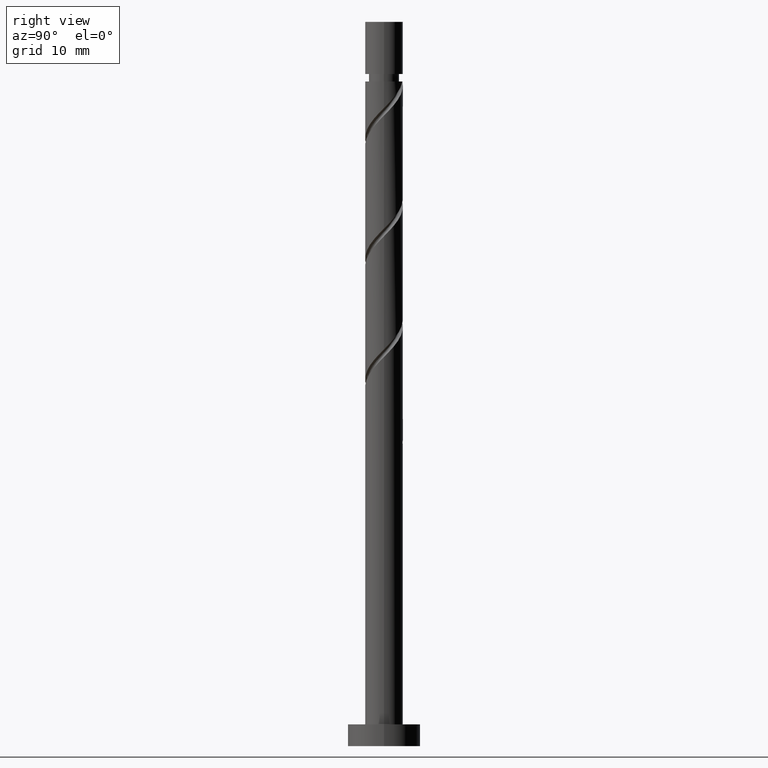
[diagram: clean part render]
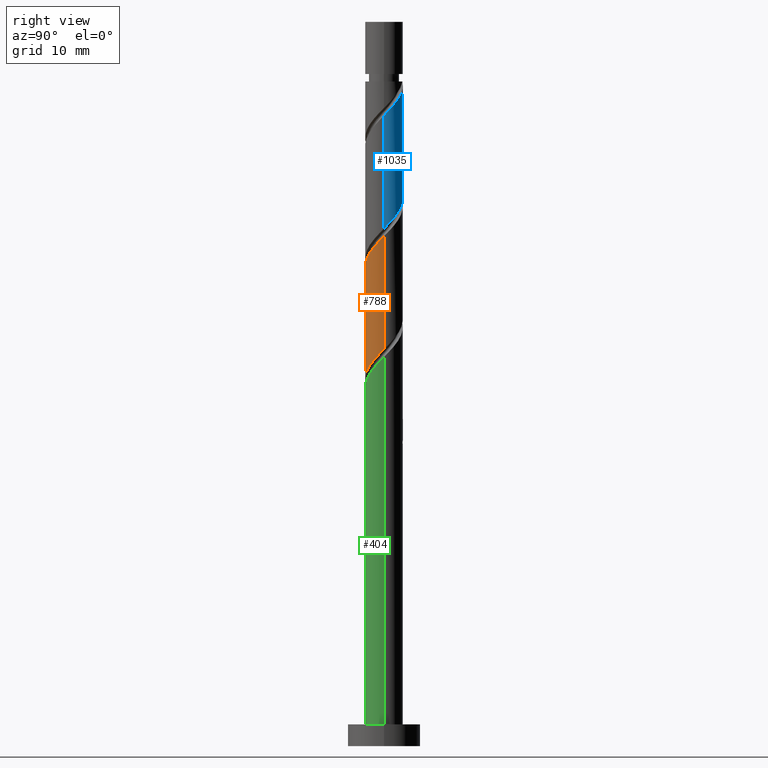
[diagram: same view with three faces highlighted in distinct colors, each labeled with its STEP entity id]
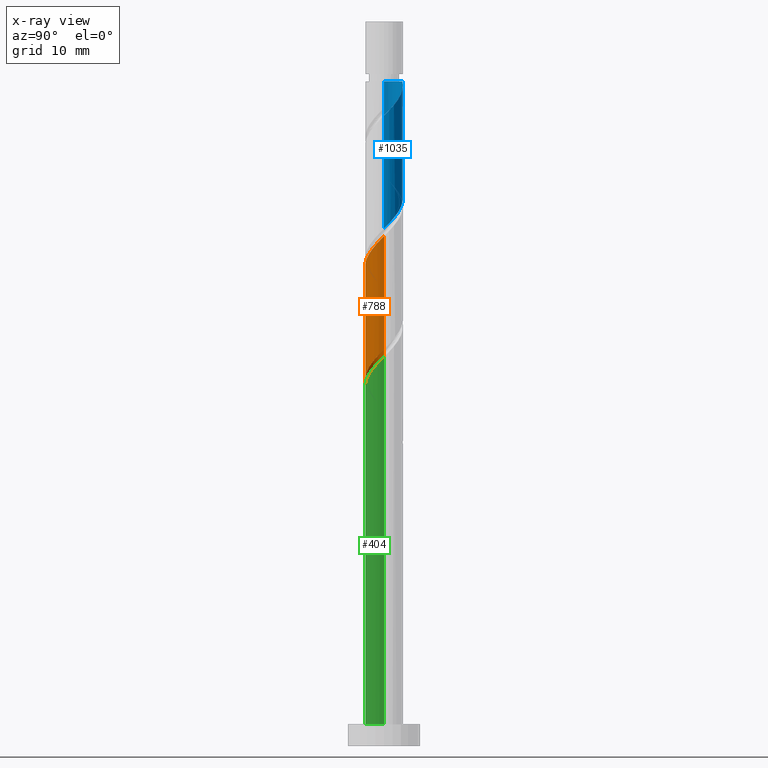
[diagram: x-ray of the same camera — body ghosted, the three highlighted faces saturated]
A machine part, right view with three faces highlighted in distinct colors.
The next image is the same camera in x-ray (body ghosted, the three faces saturated) — at least one of them is partly hidden behind the body in this view.
Their STEP definitions:

[orange] entity #788 — the highlighted cylindrical surface (edge-blend (fillet) strip) has radius 2.6 mm, axis along (-0, -0, -1).
#37 = CARTESIAN_POINT ( 'NONE',  ( -1.947935995195031467, -1.722075886429966562, 63.98565855078766873 ) ) ;
#65 = CARTESIAN_POINT ( 'NONE',  ( 2.587307007084878929, -0.5253750955076286200, 54.26343632856544730 ) ) ;
#70 = EDGE_CURVE ( 'NONE', #134, #500, #477, .T. ) ;
#72 = CARTESIAN_POINT ( 'NONE',  ( 2.419445721942477423, -0.9519886546457575482, 53.80047336560247828 ) ) ;
#134 = VERTEX_POINT ( 'NONE', #978 ) ;
#145 = CARTESIAN_POINT ( 'NONE',  ( -2.251584436800081690, -1.378602213783888919, 63.52269558782469261 ) ) ;
#176 = CARTESIAN_POINT ( 'NONE',  ( -2.600000000000002753, -0.03354435326324917144, 62.09993214750903689 ) ) ;
#178 = EDGE_CURVE ( 'NONE', #1363, #134, #1203, .T. ) ;
#196 = CARTESIAN_POINT ( 'NONE',  ( 0.06811232045027157400, -2.639230427926491984, 66.30047336560247118 ) ) ;
#197 = CARTESIAN_POINT ( 'NONE',  ( -1.748641682767721139, -1.977986047771176148, 48.70788077300989016 ) ) ;
#232 = ORIENTED_EDGE ( 'NONE', *, *, #1482, .T. ) ;
#289 = CARTESIAN_POINT ( 'NONE',  ( 1.748641682767722250, -1.977986047771178590, 68.15232521745434724 ) ) ;
#290 = CARTESIAN_POINT ( 'NONE',  ( 0.8386653243171569017, -2.503361143278804768, 51.48565855078766162 ) ) ;
#315 = CARTESIAN_POINT ( 'NONE',  ( 2.600000000000001865, -2.771178294448784339E-15, 70.39924810691003643 ) ) ;
#339 = FACE_OUTER_BOUND ( 'NONE', #1066, .T. ) ;
#352 = DIRECTION ( 'NONE',  ( -1.000000000000000000, 0.000000000000000000, 0.000000000000000000 ) ) ;
#368 = LINE ( 'NONE', #1481, #1177 ) ;
#407 = CARTESIAN_POINT ( 'NONE',  ( 1.644287553589979689, -2.065549559076044872, 52.41158447671358545 ) ) ;
#412 = CARTESIAN_POINT ( 'NONE',  ( -0.5173934672954416669, -2.548000000000000043, 50.09676966189876168 ) ) ;
#425 = CARTESIAN_POINT ( 'NONE',  ( 2.600000000000000089, 3.184081677783117698E-16, 100.0000000000000000 ) ) ;
#428 = CARTESIAN_POINT ( 'NONE',  ( -2.599999999999999201, -0.4239413667331917712, 46.89087739591983706 ) ) ;
#477 =( BOUNDED_CURVE ( )  B_SPLINE_CURVE ( 2, ( #1069, #729, #1434, #65, #72, #967, #1428, #407, #631, #290, #972, #707, #412, #1166, #604, #197, #1214, #778, #1447, #428, #665 ),
 .UNSPECIFIED., .F., .T. ) 
 B_SPLINE_CURVE_WITH_KNOTS ( ( 3, 2, 2, 2, 2, 2, 2, 2, 2, 2, 3 ),
 ( 0.8045248053855289516, 0.8055555555555555802, 0.8194444444444444198, 0.8333333333333333703, 0.8472222222222222099, 0.8611111111111111605, 0.8750000000000000000, 0.8888888888888888395, 0.9027777777777777901, 0.9166666666666666297, 0.9295248053855289516 ),
 .UNSPECIFIED. ) 
 CURVE ( )  GEOMETRIC_REPRESENTATION_ITEM ( )  RATIONAL_B_SPLINE_CURVE ( ( 0.9071930855141208117, 0.9080659294509685342, 0.9090909090909087276, 0.8952797754656430795, 0.9090909090909087276, 0.8952797754656430795, 0.9090909090909087276, 0.8952797754656430795, 0.9090909090909087276, 0.8952797754656430795, 0.9090909090909087276, 0.8952797754656430795, 0.9090909090909087276, 0.8952797754656430795, 0.9090909090909087276, 0.8952797754656430795, 0.9090909090909087276, 0.8952797754656430795, 0.9090909090909087276, 0.8963047551055832729, 0.9071930855141208117 ) ) 
 REPRESENTATION_ITEM ( '' )  );
#500 = VERTEX_POINT ( 'NONE', #810 ) ;
#525 = CARTESIAN_POINT ( 'NONE',  ( 2.319696757250354402, -1.260628214142604175, 69.07825114338024264 ) ) ;
#531 = CARTESIAN_POINT ( 'NONE',  ( 0.9666746141406103998, -2.456769572073514762, 67.22639929152840921 ) ) ;
#604 = CARTESIAN_POINT ( 'NONE',  ( -1.357658148454165881, -2.217377809922343346, 49.17084373597285207 ) ) ;
#628 = VECTOR ( 'NONE', #1301, 1000.000000000000000 ) ;
#631 = CARTESIAN_POINT ( 'NONE',  ( 1.241476438953568628, -2.284455351177423932, 51.94862151375063064 ) ) ;
#665 = CARTESIAN_POINT ( 'NONE',  ( -2.600000000000000533, -2.222171273850450732E-15, 46.46095788355420808 ) ) ;
#670 = ORIENTED_EDGE ( 'NONE', *, *, #70, .F. ) ;
#705 =( BOUNDED_CURVE ( )  B_SPLINE_CURVE ( 2, ( #1192, #176, #852, #737, #1200, #145, #37, #1427, #1090, #848, #1206, #196, #1317, #531, #1330, #289, #1104, #525, #996, #742, #1454 ),
 .UNSPECIFIED., .F., .T. ) 
 B_SPLINE_CURVE_WITH_KNOTS ( ( 3, 2, 2, 2, 2, 2, 2, 2, 2, 2, 3 ),
 ( 0.3045248053855289516, 0.3055555555555555802, 0.3194444444444444198, 0.3333333333333333703, 0.3472222222222222099, 0.3611111111111111605, 0.3750000000000000000, 0.3888888888888888395, 0.4027777777777777901, 0.4166666666666666297, 0.4295248053855289516 ),
 .UNSPECIFIED. ) 
 CURVE ( )  GEOMETRIC_REPRESENTATION_ITEM ( )  RATIONAL_B_SPLINE_CURVE ( ( 0.9071930855141249195, 0.9080659294509726420, 0.9090909090909128354, 0.8952797754656471874, 0.9090909090909128354, 0.8952797754656471874, 0.9090909090909128354, 0.8952797754656471874, 0.9090909090909128354, 0.8952797754656471874, 0.9090909090909128354, 0.8952797754656471874, 0.9090909090909128354, 0.8952797754656471874, 0.9090909090909128354, 0.8952797754656471874, 0.9090909090909128354, 0.8952797754656471874, 0.9090909090909128354, 0.8963047551055873807, 0.9071930855141249195 ) ) 
 REPRESENTATION_ITEM ( '' )  );
#707 = CARTESIAN_POINT ( 'NONE',  ( -0.06811232045027364179, -2.639230427926490208, 50.55973262486173780 ) ) ;
#719 = AXIS2_PLACEMENT_3D ( 'NONE', #815, #1245, #352 ) ;
#729 = CARTESIAN_POINT ( 'NONE',  ( 2.600000000000000089, -0.03354435326325068412, 54.76027384295517209 ) ) ;
#737 = CARTESIAN_POINT ( 'NONE',  ( -2.587307007084881594, -0.5253750955076283979, 62.59676966189878300 ) ) ;
#742 = CARTESIAN_POINT ( 'NONE',  ( 2.600000000000002309, -0.4239413667331943247, 69.96932859454440745 ) ) ;
#778 = CARTESIAN_POINT ( 'NONE',  ( -2.319696757250350849, -1.260628214142602843, 47.78195484708397345 ) ) ;
#788 = ADVANCED_FACE ( 'NONE', ( #339 ), #912, .T. ) ;
#800 = DIRECTION ( 'NONE',  ( -0.000000000000000000, -0.000000000000000000, -1.000000000000000000 ) ) ;
#810 = CARTESIAN_POINT ( 'NONE',  ( -2.600000000000000533, -2.222171273850450732E-15, 46.46095788355420808 ) ) ;
#815 = CARTESIAN_POINT ( 'NONE',  ( 0.000000000000000000, 0.000000000000000000, 100.0000000000000000 ) ) ;
#848 = CARTESIAN_POINT ( 'NONE',  ( -0.8386653243171585670, -2.503361143278806988, 65.37454743967656157 ) ) ;
#852 = CARTESIAN_POINT ( 'NONE',  ( -2.599134587407736507, -0.06707754125508011422, 62.13380669893581398 ) ) ;
#912 = CYLINDRICAL_SURFACE ( 'NONE', #719, 2.600000000000000089 ) ;
#942 = EDGE_CURVE ( 'NONE', #1283, #1363, #705, .T. ) ;
#967 = CARTESIAN_POINT ( 'NONE',  ( 2.251584436800078581, -1.378602213783889141, 53.33751040263952348 ) ) ;
#972 = CARTESIAN_POINT ( 'NONE',  ( 0.3852765019334422059, -2.571295785602646156, 51.02269558782469261 ) ) ;
#978 = CARTESIAN_POINT ( 'NONE',  ( 2.600000000000000533, 1.172708873931162187E-15, 54.79429121688752957 ) ) ;
#996 = CARTESIAN_POINT ( 'NONE',  ( 2.465329462490473578, -0.8259241135700370329, 69.54121410634321876 ) ) ;
#1066 = EDGE_LOOP ( 'NONE', ( #1130, #1279, #232, #670 ) ) ;
#1069 = CARTESIAN_POINT ( 'NONE',  ( 2.600000000000000533, 1.172708873931162187E-15, 54.79429121688752957 ) ) ;
#1090 = CARTESIAN_POINT ( 'NONE',  ( -1.241476438953570405, -2.284455351177426596, 64.91158447671359966 ) ) ;
#1104 = CARTESIAN_POINT ( 'NONE',  ( 2.034169220009037549, -1.619307130956890495, 68.61528818041729494 ) ) ;
#1130 = ORIENTED_EDGE ( 'NONE', *, *, #178, .F. ) ;
#1166 = CARTESIAN_POINT ( 'NONE',  ( -0.9666746141406113990, -2.456769572073511210, 49.63380669893582109 ) ) ;
#1177 = VECTOR ( 'NONE', #800, 1000.000000000000000 ) ;
#1192 = CARTESIAN_POINT ( 'NONE',  ( -2.600000000000001865, 2.767443552812060369E-15, 62.06591477357667230 ) ) ;
#1200 = CARTESIAN_POINT ( 'NONE',  ( -2.419445721942480976, -0.9519886546457582144, 63.05973262486173780 ) ) ;
#1203 = LINE ( 'NONE', #425, #628 ) ;
#1206 = CARTESIAN_POINT ( 'NONE',  ( -0.3852765019334435381, -2.571295785602649264, 65.83751040263953769 ) ) ;
#1214 = CARTESIAN_POINT ( 'NONE',  ( -2.034169220009036216, -1.619307130956888274, 48.24491781004692115 ) ) ;
#1233 = CARTESIAN_POINT ( 'NONE',  ( -2.600000000000001865, 2.767443552812060764E-15, 62.06591477357667230 ) ) ;
#1245 = DIRECTION ( 'NONE',  ( -0.000000000000000000, -0.000000000000000000, -1.000000000000000000 ) ) ;
#1279 = ORIENTED_EDGE ( 'NONE', *, *, #942, .F. ) ;
#1283 = VERTEX_POINT ( 'NONE', #1233 ) ;
#1301 = DIRECTION ( 'NONE',  ( -0.000000000000000000, -0.000000000000000000, -1.000000000000000000 ) ) ;
#1317 = CARTESIAN_POINT ( 'NONE',  ( 0.5173934672954414449, -2.548000000000003151, 66.76343632856541888 ) ) ;
#1330 = CARTESIAN_POINT ( 'NONE',  ( 1.357658148454166991, -2.217377809922346010, 67.68936225449137112 ) ) ;
#1363 = VERTEX_POINT ( 'NONE', #315 ) ;
#1427 = CARTESIAN_POINT ( 'NONE',  ( -1.644287553589981909, -2.065549559076046648, 64.44862151375062354 ) ) ;
#1428 = CARTESIAN_POINT ( 'NONE',  ( 1.947935995195028580, -1.722075886429966785, 52.87454743967655446 ) ) ;
#1434 = CARTESIAN_POINT ( 'NONE',  ( 2.599134587407734287, -0.06707754125508152976, 54.72639929152839500 ) ) ;
#1447 = CARTESIAN_POINT ( 'NONE',  ( -2.465329462490470913, -0.8259241135700340353, 47.31899188412099733 ) ) ;
#1454 = CARTESIAN_POINT ( 'NONE',  ( 2.600000000000001865, -2.771178294448784339E-15, 70.39924810691003643 ) ) ;
#1481 = CARTESIAN_POINT ( 'NONE',  ( -2.600000000000000089, 0.000000000000000000, 100.0000000000000000 ) ) ;
#1482 = EDGE_CURVE ( 'NONE', #1283, #500, #368, .T. ) ;

[blue] entity #1035 — the highlighted cylindrical surface (edge-blend (fillet) strip) has radius 2.6 mm, axis along (-0, -0, -1).
#8 = VECTOR ( 'NONE', #538, 1000.000000000000000 ) ;
#27 = EDGE_CURVE ( 'NONE', #334, #1034, #782, .T. ) ;
#45 = CARTESIAN_POINT ( 'NONE',  ( 2.034169220009036660, 1.619307130956888052, 73.24491781004692825 ) ) ;
#55 = CARTESIAN_POINT ( 'NONE',  ( 2.465329462490470913, 0.8259241135700348124, 72.31899188412101864 ) ) ;
#64 = FACE_OUTER_BOUND ( 'NONE', #393, .T. ) ;
#96 = CARTESIAN_POINT ( 'NONE',  ( 2.599134587407736507, 0.06707754125508033627, 87.13380669893579977 ) ) ;
#100 = LINE ( 'NONE', #977, #8 ) ;
#130 = CARTESIAN_POINT ( 'NONE',  ( -2.599134587407734287, 0.06707754125508058607, 79.72639929152839500 ) ) ;
#164 = DIRECTION ( 'NONE',  ( -0.000000000000000000, -0.000000000000000000, -1.000000000000000000 ) ) ;
#167 = CARTESIAN_POINT ( 'NONE',  ( 2.600000000000000533, 1.172708873931162187E-15, 71.46095788355421519 ) ) ;
#184 = AXIS2_PLACEMENT_3D ( 'NONE', #1197, #854, #630 ) ;
#245 = CARTESIAN_POINT ( 'NONE',  ( 1.644287553589982354, 2.065549559076046648, 89.44862151375063775 ) ) ;
#259 = CARTESIAN_POINT ( 'NONE',  ( -0.8386653243171574568, 2.503361143278804768, 76.48565855078767584 ) ) ;
#297 = VECTOR ( 'NONE', #164, 1000.000000000000000 ) ;
#310 = VERTEX_POINT ( 'NONE', #762 ) ;
#334 = VERTEX_POINT ( 'NONE', #471 ) ;
#345 = CARTESIAN_POINT ( 'NONE',  ( -0.5173934672954411118, 2.548000000000002707, 91.76343632856546151 ) ) ;
#350 = CARTESIAN_POINT ( 'NONE',  ( -2.600000000000000089, 1.112953007743586956E-15, 79.79429121688754378 ) ) ;
#360 = CARTESIAN_POINT ( 'NONE',  ( -2.600000000000000533, 0.03354435326324591710, 79.76027384295518630 ) ) ;
#376 = AXIS2_PLACEMENT_3D ( 'NONE', #1213, #1089, #1281 ) ;
#393 = EDGE_LOOP ( 'NONE', ( #725, #1236, #1241, #774, #1262 ) ) ;
#411 = CARTESIAN_POINT ( 'NONE',  ( 2.600000000000000533, 1.172708873931162187E-15, 71.46095788355421519 ) ) ;
#471 = CARTESIAN_POINT ( 'NONE',  ( -2.600000000000000089, 1.112953007743586956E-15, 79.79429121688754378 ) ) ;
#485 = CARTESIAN_POINT ( 'NONE',  ( -1.947935995195029246, 1.722075886429965896, 77.87454743967653314 ) ) ;
#511 = CARTESIAN_POINT ( 'NONE',  ( -1.241476438953568628, 2.284455351177423932, 76.94862151375065196 ) ) ;
#526 = CARTESIAN_POINT ( 'NONE',  ( 0.5173934672954421110, 2.548000000000000043, 75.09676966189879010 ) ) ;
#538 = DIRECTION ( 'NONE',  ( -0.000000000000000000, -0.000000000000000000, -1.000000000000000000 ) ) ;
#594 = VERTEX_POINT ( 'NONE', #616 ) ;
#612 = CARTESIAN_POINT ( 'NONE',  ( 0.06811232045027268422, 2.639230427926489764, 75.55973262486173780 ) ) ;
#616 = CARTESIAN_POINT ( 'NONE',  ( 2.600000000000001865, 5.676807287819611469E-16, 87.06591477357666520 ) ) ;
#620 = EDGE_CURVE ( 'NONE', #310, #334, #100, .T. ) ;
#630 = DIRECTION ( 'NONE',  ( -1.000000000000000000, 0.000000000000000000, 0.000000000000000000 ) ) ;
#669 = EDGE_CURVE ( 'NONE', #594, #1034, #948, .T. ) ;
#725 = ORIENTED_EDGE ( 'NONE', *, *, #747, .F. ) ;
#735 = CARTESIAN_POINT ( 'NONE',  ( 2.319696757250352182, 1.260628214142602399, 72.78195484708396634 ) ) ;
#747 = EDGE_CURVE ( 'NONE', #594, #1395, #975, .T. ) ;
#757 = CYLINDRICAL_SURFACE ( 'NONE', #184, 2.600000000000000089 ) ;
#762 = CARTESIAN_POINT ( 'NONE',  ( -2.600000000000000977, 0.000000000000000000, 91.76343632856544730 ) ) ;
#774 = ORIENTED_EDGE ( 'NONE', *, *, #620, .F. ) ;
#782 =( BOUNDED_CURVE ( )  B_SPLINE_CURVE ( 2, ( #350, #360, #130, #1032, #820, #1266, #485, #1152, #511, #259, #951, #612, #526, #1058, #1400, #1183, #45, #735, #55, #959, #167 ),
 .UNSPECIFIED., .F., .T. ) 
 B_SPLINE_CURVE_WITH_KNOTS ( ( 3, 2, 2, 2, 2, 2, 2, 2, 2, 2, 3 ),
 ( 0.4295248053855288406, 0.4305555555555555802, 0.4444444444444444198, 0.4583333333333333148, 0.4722222222222222099, 0.4861111111111111049, 0.5000000000000000000, 0.5138888888888888395, 0.5277777777777777901, 0.5416666666666666297, 0.5545248053855289516 ),
 .UNSPECIFIED. ) 
 CURVE ( )  GEOMETRIC_REPRESENTATION_ITEM ( )  RATIONAL_B_SPLINE_CURVE ( ( 0.9071930855141205896, 0.9080659294509684232, 0.9090909090909087276, 0.8952797754656430795, 0.9090909090909087276, 0.8952797754656430795, 0.9090909090909087276, 0.8952797754656430795, 0.9090909090909087276, 0.8952797754656430795, 0.9090909090909087276, 0.8952797754656430795, 0.9090909090909087276, 0.8952797754656430795, 0.9090909090909087276, 0.8952797754656430795, 0.9090909090909087276, 0.8952797754656430795, 0.9090909090909087276, 0.8963047551055832729, 0.9071930855141208117 ) ) 
 REPRESENTATION_ITEM ( '' )  );
#820 = CARTESIAN_POINT ( 'NONE',  ( -2.419445721942477423, 0.9519886546457578813, 78.80047336560247118 ) ) ;
#854 = DIRECTION ( 'NONE',  ( -0.000000000000000000, -0.000000000000000000, -1.000000000000000000 ) ) ;
#888 = CARTESIAN_POINT ( 'NONE',  ( 2.251584436800082134, 1.378602213783887365, 88.52269558782471393 ) ) ;
#899 = CARTESIAN_POINT ( 'NONE',  ( -0.06811232045027974802, 2.639230427926493761, 91.30047336560252802 ) ) ;
#948 = LINE ( 'NONE', #1180, #297 ) ;
#951 = CARTESIAN_POINT ( 'NONE',  ( -0.3852765019334423169, 2.571295785602646156, 76.02269558782469971 ) ) ;
#959 = CARTESIAN_POINT ( 'NONE',  ( 2.599999999999999201, 0.4239413667331902724, 71.89087739591981574 ) ) ;
#975 =( BOUNDED_CURVE ( )  B_SPLINE_CURVE ( 2, ( #1218, #1096, #96, #1001, #1469, #888, #1352, #245, #1484, #1387, #1135, #899, #345 ),
 .UNSPECIFIED., .F., .T. ) 
 B_SPLINE_CURVE_WITH_KNOTS ( ( 3, 2, 2, 2, 2, 2, 3 ),
 ( 0.6795248053855289516, 0.6805555555555555802, 0.6944444444444444198, 0.7083333333333333703, 0.7222222222222223209, 0.7361111111111113825, 0.7500000000000002220 ),
 .UNSPECIFIED. ) 
 CURVE ( )  GEOMETRIC_REPRESENTATION_ITEM ( )  RATIONAL_B_SPLINE_CURVE ( ( 0.9071930855141249195, 0.9080659294509726420, 0.9090909090909128354, 0.8952797754656471874, 0.9090909090909128354, 0.8952797754656471874, 0.9090909090909128354, 0.8952797754656471874, 0.9090909090909128354, 0.8952797754656471874, 0.9090909090909128354, 0.8952797754656469653, 0.9090909090909130574 ) ) 
 REPRESENTATION_ITEM ( '' )  );
#977 = CARTESIAN_POINT ( 'NONE',  ( -2.600000000000000089, 0.000000000000000000, 100.0000000000000000 ) ) ;
#1001 = CARTESIAN_POINT ( 'NONE',  ( 2.587307007084881594, 0.5253750955076280649, 87.59676966189876168 ) ) ;
#1032 = CARTESIAN_POINT ( 'NONE',  ( -2.587307007084878929, 0.5253750955076282869, 79.26343632856546151 ) ) ;
#1034 = VERTEX_POINT ( 'NONE', #411 ) ;
#1035 = ADVANCED_FACE ( 'NONE', ( #64 ), #757, .T. ) ;
#1058 = CARTESIAN_POINT ( 'NONE',  ( 0.9666746141406107329, 2.456769572073511210, 74.63380669893579977 ) ) ;
#1081 = EDGE_CURVE ( 'NONE', #310, #1395, #1470, .T. ) ;
#1089 = DIRECTION ( 'NONE',  ( -0.000000000000000000, -0.000000000000000000, -1.000000000000000000 ) ) ;
#1096 = CARTESIAN_POINT ( 'NONE',  ( 2.600000000000002753, 0.03354435326324903960, 87.09993214750903689 ) ) ;
#1135 = CARTESIAN_POINT ( 'NONE',  ( 0.3852765019334450924, 2.571295785602649264, 90.83751040263949506 ) ) ;
#1152 = CARTESIAN_POINT ( 'NONE',  ( -1.644287553589979689, 2.065549559076044428, 77.41158447671358545 ) ) ;
#1180 = CARTESIAN_POINT ( 'NONE',  ( 2.600000000000000089, 3.184081677783117698E-16, 100.0000000000000000 ) ) ;
#1183 = CARTESIAN_POINT ( 'NONE',  ( 1.748641682767722694, 1.977986047771174816, 73.70788077300987595 ) ) ;
#1197 = CARTESIAN_POINT ( 'NONE',  ( 0.000000000000000000, 0.000000000000000000, 100.0000000000000000 ) ) ;
#1213 = CARTESIAN_POINT ( 'NONE',  ( 0.000000000000000000, 0.000000000000000000, 91.76343632856544730 ) ) ;
#1218 = CARTESIAN_POINT ( 'NONE',  ( 2.600000000000001865, 5.676807287819611469E-16, 87.06591477357666520 ) ) ;
#1236 = ORIENTED_EDGE ( 'NONE', *, *, #669, .T. ) ;
#1241 = ORIENTED_EDGE ( 'NONE', *, *, #27, .F. ) ;
#1262 = ORIENTED_EDGE ( 'NONE', *, *, #1081, .T. ) ;
#1266 = CARTESIAN_POINT ( 'NONE',  ( -2.251584436800078581, 1.378602213783887809, 78.33751040263953769 ) ) ;
#1281 = DIRECTION ( 'NONE',  ( -1.000000000000000000, 0.000000000000000000, 0.000000000000000000 ) ) ;
#1350 = CARTESIAN_POINT ( 'NONE',  ( -0.5173934672954411118, 2.548000000000003151, 91.76343632856546151 ) ) ;
#1352 = CARTESIAN_POINT ( 'NONE',  ( 1.947935995195031245, 1.722075886429967451, 88.98565855078764741 ) ) ;
#1387 = CARTESIAN_POINT ( 'NONE',  ( 0.8386653243171604544, 2.503361143278806544, 90.37454743967658999 ) ) ;
#1395 = VERTEX_POINT ( 'NONE', #1350 ) ;
#1400 = CARTESIAN_POINT ( 'NONE',  ( 1.357658148454167657, 2.217377809922342458, 74.17084373597286628 ) ) ;
#1469 = CARTESIAN_POINT ( 'NONE',  ( 2.419445721942481864, 0.9519886546457574372, 88.05973262486172359 ) ) ;
#1470 = CIRCLE ( 'NONE', #376, 2.600000000000000533 ) ;
#1484 = CARTESIAN_POINT ( 'NONE',  ( 1.241476438953571071, 2.284455351177426596, 89.91158447671361387 ) ) ;

[green] entity #404 — the highlighted cylindrical surface (edge-blend (fillet) strip) has radius 2.6 mm, axis along (-0, -0, -1).
#41 = ORIENTED_EDGE ( 'NONE', *, *, #158, .F. ) ;
#60 = DIRECTION ( 'NONE',  ( -0.000000000000000000, -0.000000000000000000, -1.000000000000000000 ) ) ;
#76 = DIRECTION ( 'NONE',  ( -0.000000000000000000, -0.000000000000000000, -1.000000000000000000 ) ) ;
#101 = CARTESIAN_POINT ( 'NONE',  ( 2.034169220009037549, -1.619307130956890495, 51.94862151375063064 ) ) ;
#110 = CARTESIAN_POINT ( 'NONE',  ( -2.599134587407736507, -0.06707754125508011422, 45.46714003226914258 ) ) ;
#141 = EDGE_CURVE ( 'NONE', #1460, #598, #527, .T. ) ;
#155 = CARTESIAN_POINT ( 'NONE',  ( -2.600000000000000089, 0.000000000000000000, 3.000000000000000000 ) ) ;
#158 = EDGE_CURVE ( 'NONE', #598, #380, #1322, .T. ) ;
#160 = CARTESIAN_POINT ( 'NONE',  ( 0.000000000000000000, 0.000000000000000000, 100.0000000000000000 ) ) ;
#181 = DIRECTION ( 'NONE',  ( -0.000000000000000000, -0.000000000000000000, -1.000000000000000000 ) ) ;
#199 = VECTOR ( 'NONE', #60, 1000.000000000000000 ) ;
#206 = CARTESIAN_POINT ( 'NONE',  ( 0.5173934672954414449, -2.548000000000003151, 50.09676966189876168 ) ) ;
#277 = ORIENTED_EDGE ( 'NONE', *, *, #141, .F. ) ;
#283 = CARTESIAN_POINT ( 'NONE',  ( -2.600000000000000089, 0.000000000000000000, 100.0000000000000000 ) ) ;
#314 = CARTESIAN_POINT ( 'NONE',  ( -2.251584436800081690, -1.378602213783888919, 46.85602892115804963 ) ) ;
#321 = CARTESIAN_POINT ( 'NONE',  ( -1.644287553589981909, -2.065549559076046648, 47.78195484708396634 ) ) ;
#361 = FACE_OUTER_BOUND ( 'NONE', #580, .T. ) ;
#380 = VERTEX_POINT ( 'NONE', #878 ) ;
#404 = ADVANCED_FACE ( 'NONE', ( #361 ), #1039, .T. ) ;
#436 = CARTESIAN_POINT ( 'NONE',  ( -1.947935995195031467, -1.722075886429966562, 47.31899188412100443 ) ) ;
#466 = EDGE_CURVE ( 'NONE', #1185, #380, #1226, .T. ) ;
#505 = DIRECTION ( 'NONE',  ( -1.000000000000000000, 0.000000000000000000, 0.000000000000000000 ) ) ;
#524 = LINE ( 'NONE', #283, #1248 ) ;
#527 =( BOUNDED_CURVE ( )  B_SPLINE_CURVE ( 2, ( #864, #1474, #110, #563, #985, #314, #436, #321, #767, #1012, #1318, #1232, #206, #743, #657, #1207, #101, #1047, #1188, #624, #1410 ),
 .UNSPECIFIED., .F., .T. ) 
 B_SPLINE_CURVE_WITH_KNOTS ( ( 3, 2, 2, 2, 2, 2, 2, 2, 2, 2, 3 ),
 ( 0.05452480538552913897, 0.05555555555555558023, 0.06944444444444441977, 0.08333333333333337034, 0.09722222222222220989, 0.1111111111111111605, 0.1250000000000000000, 0.1388888888888888395, 0.1527777777777777901, 0.1666666666666666297, 0.1795248053855288961 ),
 .UNSPECIFIED. ) 
 CURVE ( )  GEOMETRIC_REPRESENTATION_ITEM ( )  RATIONAL_B_SPLINE_CURVE ( ( 0.9071930855141251415, 0.9080659294509727530, 0.9090909090909128354, 0.8952797754656471874, 0.9090909090909128354, 0.8952797754656471874, 0.9090909090909128354, 0.8952797754656471874, 0.9090909090909128354, 0.8952797754656471874, 0.9090909090909128354, 0.8952797754656471874, 0.9090909090909128354, 0.8952797754656471874, 0.9090909090909128354, 0.8952797754656471874, 0.9090909090909128354, 0.8952797754656471874, 0.9090909090909128354, 0.8963047551055873807, 0.9071930855141248085 ) ) 
 REPRESENTATION_ITEM ( '' )  );
#563 = CARTESIAN_POINT ( 'NONE',  ( -2.587307007084881594, -0.5253750955076283979, 45.93010299523211160 ) ) ;
#580 = EDGE_LOOP ( 'NONE', ( #41, #277, #717, #710 ) ) ;
#583 = AXIS2_PLACEMENT_3D ( 'NONE', #986, #1448, #869 ) ;
#598 = VERTEX_POINT ( 'NONE', #656 ) ;
#624 = CARTESIAN_POINT ( 'NONE',  ( 2.600000000000001421, -0.4239413667331962121, 53.30266192787772894 ) ) ;
#645 = AXIS2_PLACEMENT_3D ( 'NONE', #160, #76, #505 ) ;
#656 = CARTESIAN_POINT ( 'NONE',  ( 2.600000000000001865, -2.771178294448784339E-15, 53.73258144024332950 ) ) ;
#657 = CARTESIAN_POINT ( 'NONE',  ( 1.357658148454166991, -2.217377809922346010, 51.02269558782470682 ) ) ;
#710 = ORIENTED_EDGE ( 'NONE', *, *, #466, .T. ) ;
#717 = ORIENTED_EDGE ( 'NONE', *, *, #721, .T. ) ;
#721 = EDGE_CURVE ( 'NONE', #1460, #1185, #524, .T. ) ;
#743 = CARTESIAN_POINT ( 'NONE',  ( 0.9666746141406103998, -2.456769572073514762, 50.55973262486175202 ) ) ;
#767 = CARTESIAN_POINT ( 'NONE',  ( -1.241476438953570405, -2.284455351177426596, 48.24491781004692115 ) ) ;
#805 = CARTESIAN_POINT ( 'NONE',  ( -2.600000000000001865, 2.767443552812060764E-15, 45.39924810691001511 ) ) ;
#864 = CARTESIAN_POINT ( 'NONE',  ( -2.600000000000001865, 2.767443552812060764E-15, 45.39924810691000800 ) ) ;
#869 = DIRECTION ( 'NONE',  ( 1.000000000000000000, 0.000000000000000000, 0.000000000000000000 ) ) ;
#878 = CARTESIAN_POINT ( 'NONE',  ( 2.600000000000000089, 3.184081677783117698E-16, 3.000000000000000000 ) ) ;
#985 = CARTESIAN_POINT ( 'NONE',  ( -2.419445721942480976, -0.9519886546457582144, 46.39306595819506640 ) ) ;
#986 = CARTESIAN_POINT ( 'NONE',  ( 0.000000000000000000, 0.000000000000000000, 3.000000000000000000 ) ) ;
#1012 = CARTESIAN_POINT ( 'NONE',  ( -0.8386653243171585670, -2.503361143278806988, 48.70788077300990437 ) ) ;
#1039 = CYLINDRICAL_SURFACE ( 'NONE', #645, 2.600000000000000089 ) ;
#1047 = CARTESIAN_POINT ( 'NONE',  ( 2.319696757250354402, -1.260628214142604175, 52.41158447671359255 ) ) ;
#1088 = CARTESIAN_POINT ( 'NONE',  ( 2.600000000000000089, 3.184081677783117698E-16, 100.0000000000000000 ) ) ;
#1185 = VERTEX_POINT ( 'NONE', #155 ) ;
#1188 = CARTESIAN_POINT ( 'NONE',  ( 2.465329462490473578, -0.8259241135700370329, 52.87454743967654736 ) ) ;
#1207 = CARTESIAN_POINT ( 'NONE',  ( 1.748641682767722250, -1.977986047771178590, 51.48565855078766873 ) ) ;
#1226 = CIRCLE ( 'NONE', #583, 2.600000000000000089 ) ;
#1232 = CARTESIAN_POINT ( 'NONE',  ( 0.06811232045027157400, -2.639230427926491984, 49.63380669893582109 ) ) ;
#1248 = VECTOR ( 'NONE', #181, 1000.000000000000000 ) ;
#1318 = CARTESIAN_POINT ( 'NONE',  ( -0.3852765019334435381, -2.571295785602649264, 49.17084373597284497 ) ) ;
#1322 = LINE ( 'NONE', #1088, #199 ) ;
#1410 = CARTESIAN_POINT ( 'NONE',  ( 2.600000000000001865, -2.771178294448784339E-15, 53.73258144024332950 ) ) ;
#1448 = DIRECTION ( 'NONE',  ( 0.000000000000000000, 0.000000000000000000, 1.000000000000000000 ) ) ;
#1460 = VERTEX_POINT ( 'NONE', #805 ) ;
#1474 = CARTESIAN_POINT ( 'NONE',  ( -2.600000000000003197, -0.03354435326325524991, 45.43326548084237260 ) ) ;